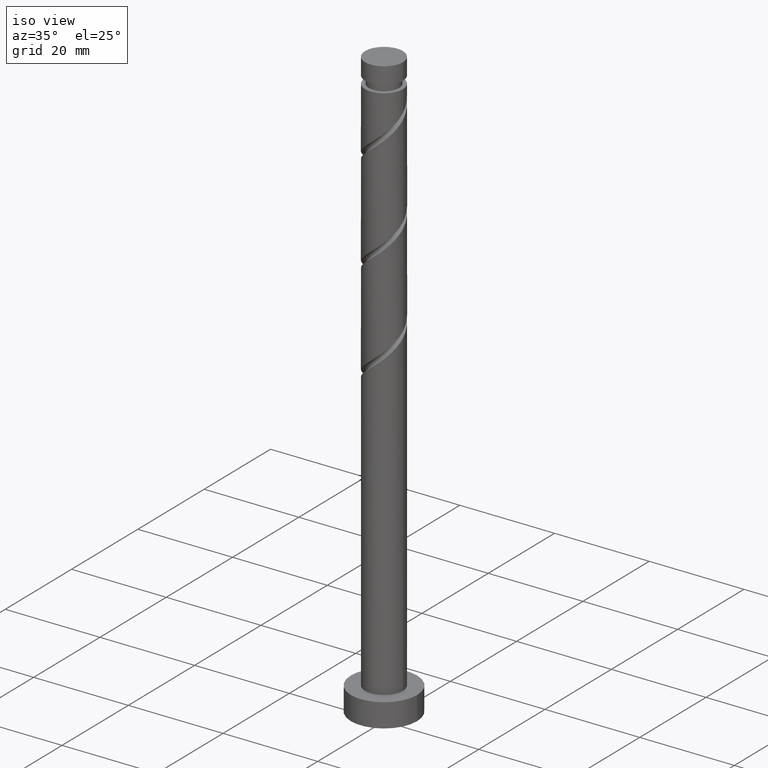
[diagram: clean part render]
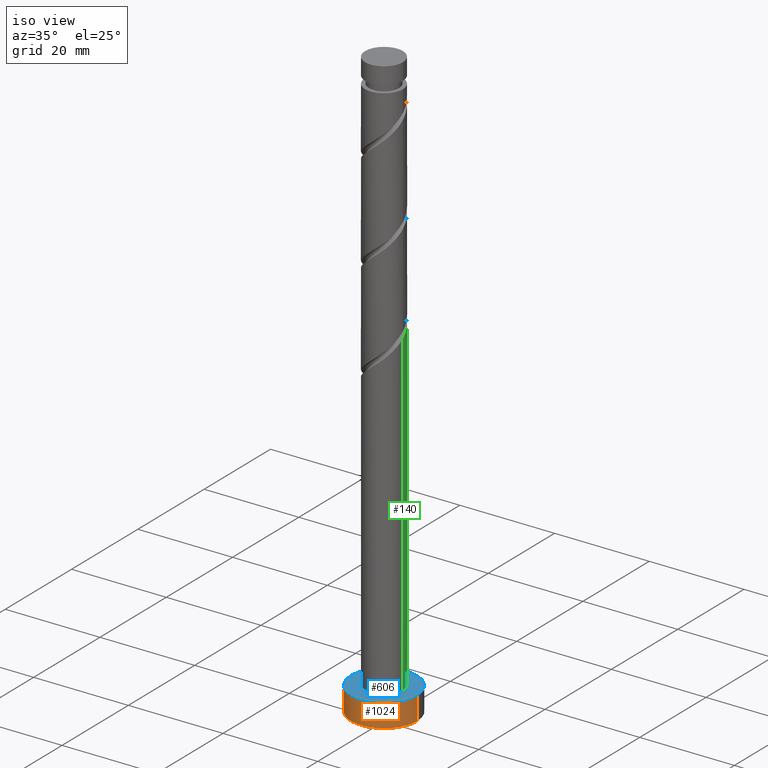
[diagram: same view with three faces highlighted in distinct colors, each labeled with its STEP entity id]
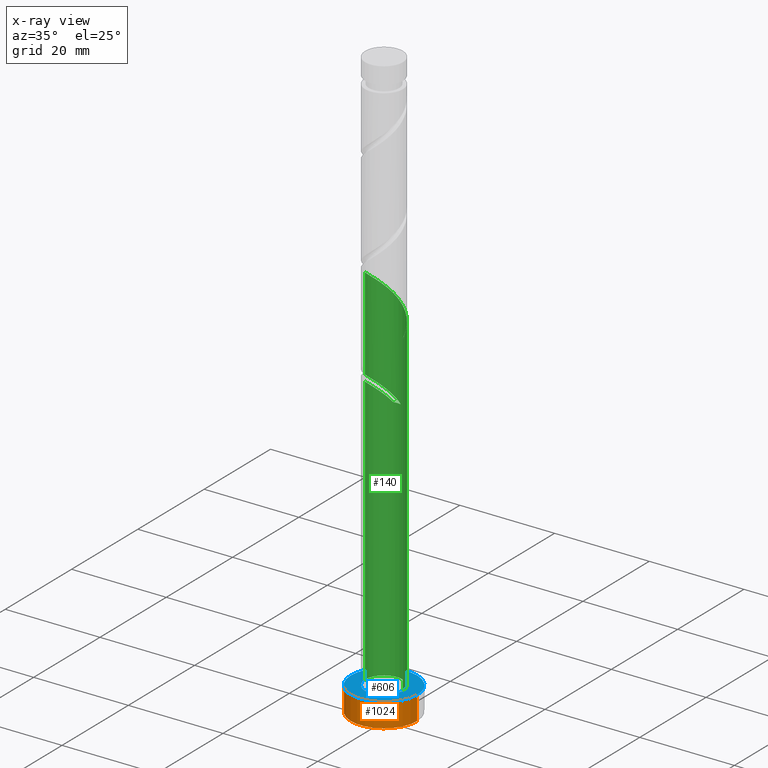
[diagram: x-ray of the same camera — body ghosted, the three highlighted faces saturated]
A machine part, iso view with three faces highlighted in distinct colors.
The next image is the same camera in x-ray (body ghosted, the three faces saturated) — at least one of them is partly hidden behind the body in this view.
Their STEP definitions:

[orange] entity #1024 — the highlighted cylindrical surface (partial cylindrical patch) has radius 7 mm, axis along (-0, -0, -1).
#14 = CARTESIAN_POINT ( 'NONE',  ( 7.000000000000000000, 8.572527594031473190E-16, 5.000000000000000000 ) ) ;
#47 = DIRECTION ( 'NONE',  ( -0.000000000000000000, -0.000000000000000000, -1.000000000000000000 ) ) ;
#89 = CIRCLE ( 'NONE', #499, 7.000000000000000000 ) ;
#109 = LINE ( 'NONE', #806, #897 ) ;
#125 = ORIENTED_EDGE ( 'NONE', *, *, #1494, .F. ) ;
#142 = DIRECTION ( 'NONE',  ( -0.000000000000000000, -0.000000000000000000, -1.000000000000000000 ) ) ;
#243 = AXIS2_PLACEMENT_3D ( 'NONE', #576, #829, #1057 ) ;
#421 = FACE_OUTER_BOUND ( 'NONE', #478, .T. ) ;
#431 = EDGE_CURVE ( 'NONE', #1241, #647, #109, .T. ) ;
#478 = EDGE_LOOP ( 'NONE', ( #797, #125, #653, #1173 ) ) ;
#499 = AXIS2_PLACEMENT_3D ( 'NONE', #700, #1052, #1542 ) ;
#571 = AXIS2_PLACEMENT_3D ( 'NONE', #1019, #47, #779 ) ;
#576 = CARTESIAN_POINT ( 'NONE',  ( 0.000000000000000000, 0.000000000000000000, 0.000000000000000000 ) ) ;
#647 = VERTEX_POINT ( 'NONE', #1509 ) ;
#653 = ORIENTED_EDGE ( 'NONE', *, *, #431, .T. ) ;
#700 = CARTESIAN_POINT ( 'NONE',  ( 0.000000000000000000, 0.000000000000000000, 5.000000000000000000 ) ) ;
#722 = VERTEX_POINT ( 'NONE', #1393 ) ;
#779 = DIRECTION ( 'NONE',  ( -1.000000000000000000, 0.000000000000000000, 0.000000000000000000 ) ) ;
#797 = ORIENTED_EDGE ( 'NONE', *, *, #1575, .F. ) ;
#806 = CARTESIAN_POINT ( 'NONE',  ( -7.000000000000000000, 0.000000000000000000, 5.000000000000000000 ) ) ;
#829 = DIRECTION ( 'NONE',  ( 0.000000000000000000, 0.000000000000000000, 1.000000000000000000 ) ) ;
#897 = VECTOR ( 'NONE', #1566, 1000.000000000000000 ) ;
#918 = CIRCLE ( 'NONE', #243, 7.000000000000000000 ) ;
#930 = VERTEX_POINT ( 'NONE', #14 ) ;
#1019 = CARTESIAN_POINT ( 'NONE',  ( 0.000000000000000000, 0.000000000000000000, 5.000000000000000000 ) ) ;
#1024 = ADVANCED_FACE ( 'NONE', ( #421 ), #1146, .T. ) ;
#1052 = DIRECTION ( 'NONE',  ( 0.000000000000000000, 0.000000000000000000, 1.000000000000000000 ) ) ;
#1057 = DIRECTION ( 'NONE',  ( 1.000000000000000000, 0.000000000000000000, 0.000000000000000000 ) ) ;
#1108 = LINE ( 'NONE', #1470, #1373 ) ;
#1146 = CYLINDRICAL_SURFACE ( 'NONE', #571, 7.000000000000000000 ) ;
#1152 = CARTESIAN_POINT ( 'NONE',  ( -7.000000000000000000, 0.000000000000000000, 5.000000000000000000 ) ) ;
#1173 = ORIENTED_EDGE ( 'NONE', *, *, #1298, .T. ) ;
#1241 = VERTEX_POINT ( 'NONE', #1152 ) ;
#1298 = EDGE_CURVE ( 'NONE', #647, #722, #918, .T. ) ;
#1373 = VECTOR ( 'NONE', #142, 1000.000000000000000 ) ;
#1393 = CARTESIAN_POINT ( 'NONE',  ( 7.000000000000000000, 8.572527594031473190E-16, 0.000000000000000000 ) ) ;
#1470 = CARTESIAN_POINT ( 'NONE',  ( 7.000000000000000000, 8.572527594031473190E-16, 5.000000000000000000 ) ) ;
#1494 = EDGE_CURVE ( 'NONE', #1241, #930, #89, .T. ) ;
#1509 = CARTESIAN_POINT ( 'NONE',  ( -7.000000000000000000, 0.000000000000000000, 0.000000000000000000 ) ) ;
#1542 = DIRECTION ( 'NONE',  ( 1.000000000000000000, 0.000000000000000000, 0.000000000000000000 ) ) ;
#1566 = DIRECTION ( 'NONE',  ( -0.000000000000000000, -0.000000000000000000, -1.000000000000000000 ) ) ;
#1575 = EDGE_CURVE ( 'NONE', #930, #722, #1108, .T. ) ;

[blue] entity #606 — the highlighted planar face has unit normal (0, 0, 1).
#14 = CARTESIAN_POINT ( 'NONE',  ( 7.000000000000000000, 8.572527594031473190E-16, 5.000000000000000000 ) ) ;
#39 = EDGE_CURVE ( 'NONE', #593, #1418, #1449, .T. ) ;
#50 = DIRECTION ( 'NONE',  ( 1.000000000000000000, 0.000000000000000000, -0.000000000000000000 ) ) ;
#89 = CIRCLE ( 'NONE', #499, 7.000000000000000000 ) ;
#94 = CARTESIAN_POINT ( 'NONE',  ( 4.000000000000000000, 4.898587196589412829E-16, 5.000000000000000000 ) ) ;
#97 = CARTESIAN_POINT ( 'NONE',  ( 0.000000000000000000, 0.000000000000000000, 5.000000000000000000 ) ) ;
#106 = ORIENTED_EDGE ( 'NONE', *, *, #1291, .T. ) ;
#170 = CARTESIAN_POINT ( 'NONE',  ( 0.000000000000000000, 0.000000000000000000, 5.000000000000000000 ) ) ;
#210 = DIRECTION ( 'NONE',  ( 1.000000000000000000, 0.000000000000000000, 0.000000000000000000 ) ) ;
#220 = CARTESIAN_POINT ( 'NONE',  ( 0.000000000000000000, 0.000000000000000000, 5.000000000000000000 ) ) ;
#268 = AXIS2_PLACEMENT_3D ( 'NONE', #694, #1034, #210 ) ;
#289 = CARTESIAN_POINT ( 'NONE',  ( -4.000000000000000000, 0.000000000000000000, 5.000000000000000000 ) ) ;
#292 = CIRCLE ( 'NONE', #1166, 4.000000000000000000 ) ;
#414 = EDGE_CURVE ( 'NONE', #1418, #593, #292, .T. ) ;
#470 = EDGE_LOOP ( 'NONE', ( #1504, #106 ) ) ;
#499 = AXIS2_PLACEMENT_3D ( 'NONE', #700, #1052, #1542 ) ;
#593 = VERTEX_POINT ( 'NONE', #289 ) ;
#602 = EDGE_LOOP ( 'NONE', ( #1400, #1531 ) ) ;
#606 = ADVANCED_FACE ( 'NONE', ( #1380, #910 ), #777, .T. ) ;
#684 = AXIS2_PLACEMENT_3D ( 'NONE', #170, #1135, #50 ) ;
#694 = CARTESIAN_POINT ( 'NONE',  ( 0.000000000000000000, 0.000000000000000000, 5.000000000000000000 ) ) ;
#700 = CARTESIAN_POINT ( 'NONE',  ( 0.000000000000000000, 0.000000000000000000, 5.000000000000000000 ) ) ;
#711 = DIRECTION ( 'NONE',  ( 0.000000000000000000, 0.000000000000000000, 1.000000000000000000 ) ) ;
#777 = PLANE ( 'NONE',  #684 ) ;
#910 = FACE_OUTER_BOUND ( 'NONE', #470, .T. ) ;
#922 = DIRECTION ( 'NONE',  ( 0.000000000000000000, 0.000000000000000000, 1.000000000000000000 ) ) ;
#930 = VERTEX_POINT ( 'NONE', #14 ) ;
#1034 = DIRECTION ( 'NONE',  ( 0.000000000000000000, 0.000000000000000000, 1.000000000000000000 ) ) ;
#1052 = DIRECTION ( 'NONE',  ( 0.000000000000000000, 0.000000000000000000, 1.000000000000000000 ) ) ;
#1054 = DIRECTION ( 'NONE',  ( 1.000000000000000000, 0.000000000000000000, 0.000000000000000000 ) ) ;
#1065 = AXIS2_PLACEMENT_3D ( 'NONE', #97, #922, #1054 ) ;
#1135 = DIRECTION ( 'NONE',  ( 0.000000000000000000, 0.000000000000000000, 1.000000000000000000 ) ) ;
#1152 = CARTESIAN_POINT ( 'NONE',  ( -7.000000000000000000, 0.000000000000000000, 5.000000000000000000 ) ) ;
#1166 = AXIS2_PLACEMENT_3D ( 'NONE', #220, #711, #1184 ) ;
#1184 = DIRECTION ( 'NONE',  ( 1.000000000000000000, 0.000000000000000000, 0.000000000000000000 ) ) ;
#1195 = CIRCLE ( 'NONE', #268, 7.000000000000000000 ) ;
#1241 = VERTEX_POINT ( 'NONE', #1152 ) ;
#1291 = EDGE_CURVE ( 'NONE', #930, #1241, #1195, .T. ) ;
#1380 = FACE_BOUND ( 'NONE', #602, .T. ) ;
#1400 = ORIENTED_EDGE ( 'NONE', *, *, #39, .F. ) ;
#1418 = VERTEX_POINT ( 'NONE', #94 ) ;
#1449 = CIRCLE ( 'NONE', #1065, 4.000000000000000000 ) ;
#1494 = EDGE_CURVE ( 'NONE', #1241, #930, #89, .T. ) ;
#1504 = ORIENTED_EDGE ( 'NONE', *, *, #1494, .T. ) ;
#1531 = ORIENTED_EDGE ( 'NONE', *, *, #414, .F. ) ;
#1542 = DIRECTION ( 'NONE',  ( 1.000000000000000000, 0.000000000000000000, 0.000000000000000000 ) ) ;

[green] entity #140 — the highlighted cylindrical surface (edge-blend (fillet) strip) has radius 4 mm, axis along (-0, -0, -1).
#5 = DIRECTION ( 'NONE',  ( -0.000000000000000000, -0.000000000000000000, -1.000000000000000000 ) ) ;
#6 = EDGE_CURVE ( 'NONE', #749, #1248, #241, .T. ) ;
#51 = VERTEX_POINT ( 'NONE', #223 ) ;
#67 = VERTEX_POINT ( 'NONE', #348 ) ;
#78 = CARTESIAN_POINT ( 'NONE',  ( -0.7959899496852951284, 3.920000000000007034, 57.34689096344955317 ) ) ;
#80 = EDGE_CURVE ( 'NONE', #51, #593, #476, .T. ) ;
#83 = DIRECTION ( 'NONE',  ( -0.000000000000000000, -0.000000000000000000, -1.000000000000000000 ) ) ;
#88 = CARTESIAN_POINT ( 'NONE',  ( -2.519899137249416388, 3.170406666830039466, 79.74272429678288177 ) ) ;
#94 = CARTESIAN_POINT ( 'NONE',  ( 4.000000000000000000, 4.898587196589412829E-16, 5.000000000000000000 ) ) ;
#127 = CARTESIAN_POINT ( 'NONE',  ( -1.083753322405397901, 3.902159508677975452, 58.90939096344956738 ) ) ;
#140 = ADVANCED_FACE ( 'NONE', ( #833 ), #739, .T. ) ;
#151 = CARTESIAN_POINT ( 'NONE',  ( 0.7959899496852964607, 3.920000000000000817, 57.34689096344955317 ) ) ;
#191 =( BOUNDED_CURVE ( )  B_SPLINE_CURVE ( 2, ( #1410, #1295, #219, #710, #1174, #389, #357, #275, #369, #127, #875, #846, #151 ),
 .UNSPECIFIED., .F., .T. ) 
 B_SPLINE_CURVE_WITH_KNOTS ( ( 3, 2, 2, 2, 2, 2, 3 ),
 ( 0.9295322023138552492, 0.9375000000000000000, 0.9499999999999999556, 0.9625000000000000222, 0.9749999999999999778, 0.9875000000000000444, 1.000000000000000000 ),
 .UNSPECIFIED. ) 
 CURVE ( )  GEOMETRIC_REPRESENTATION_ITEM ( )  RATIONAL_B_SPLINE_CURVE ( ( 0.9039174447099354026, 0.9019565955404647006, 0.9090909090909131685, 0.8978984914501292325, 0.9090909090909131685, 0.8978984914501292325, 0.9090909090909131685, 0.8978984914501292325, 0.9090909090909131685, 0.8978984914501292325, 0.9090909090909131685, 0.8978984914501292325, 0.9090909090909131685 ) ) 
 REPRESENTATION_ITEM ( '' )  );
#215 = CARTESIAN_POINT ( 'NONE',  ( 0.4543151893961445698, 3.974115965681423113, 77.13855763011622457 ) ) ;
#219 = CARTESIAN_POINT ( 'NONE',  ( -3.920000000000000817, 0.7959899496852955725, 62.55522429678289598 ) ) ;
#220 = CARTESIAN_POINT ( 'NONE',  ( 0.000000000000000000, 0.000000000000000000, 5.000000000000000000 ) ) ;
#223 = CARTESIAN_POINT ( 'NONE',  ( -4.000000000000005329, -2.998620556641140804E-15, 61.89042185531262419 ) ) ;
#239 = CARTESIAN_POINT ( 'NONE',  ( -4.000000000000000000, 0.000000000000000000, 125.0000000000000000 ) ) ;
#241 =( BOUNDED_CURVE ( )  B_SPLINE_CURVE ( 2, ( #1496, #1039, #1290, #1539, #426, #916, #817, #1529, #1163, #317, #215, #803, #451, #795, #1267, #88, #340, #1399, #707, #1387, #432, #1522, #928 ),
 .UNSPECIFIED., .F., .T. ) 
 B_SPLINE_CURVE_WITH_KNOTS ( ( 3, 2, 2, 2, 2, 2, 2, 2, 2, 2, 2, 3 ),
 ( 0.1795322023138552492, 0.1875000000000000000, 0.1999999999999999556, 0.2125000000000000222, 0.2249999999999999778, 0.2375000000000000444, 0.2500000000000000000, 0.2624999999999999556, 0.2750000000000000222, 0.2874999999999999778, 0.3000000000000000444, 0.3045322023138551937 ),
 .UNSPECIFIED. ) 
 CURVE ( )  GEOMETRIC_REPRESENTATION_ITEM ( )  RATIONAL_B_SPLINE_CURVE ( ( 0.9039174447099410648, 0.9019565955404704738, 0.9090909090909189416, 0.8978984914501350056, 0.9090909090909189416, 0.8978984914501350056, 0.9090909090909189416, 0.8978984914501350056, 0.9090909090909189416, 0.8978984914501350056, 0.9090909090909189416, 0.8978984914501350056, 0.9090909090909189416, 0.8978984914501350056, 0.9090909090909189416, 0.8978984914501350056, 0.9090909090909189416, 0.8978984914501350056, 0.9090909090909189416, 0.8978984914501350056, 0.9090909090909189416, 0.9050328050005833624, 0.9039174447099411758 ) ) 
 REPRESENTATION_ITEM ( '' )  );
#242 = VERTEX_POINT ( 'NONE', #78 ) ;
#275 = CARTESIAN_POINT ( 'NONE',  ( -2.236544262273465034, 3.376276034017704486, 59.95105763011622457 ) ) ;
#289 = CARTESIAN_POINT ( 'NONE',  ( -4.000000000000000000, 0.000000000000000000, 5.000000000000000000 ) ) ;
#292 = CIRCLE ( 'NONE', #1166, 4.000000000000000000 ) ;
#300 = ORIENTED_EDGE ( 'NONE', *, *, #414, .T. ) ;
#317 = CARTESIAN_POINT ( 'NONE',  ( 1.083753322405400565, 3.902159508677978561, 76.61772429678289598 ) ) ;
#326 = CARTESIAN_POINT ( 'NONE',  ( -1.416856955757479275, 3.793927577315144628, 57.86772429678288177 ) ) ;
#340 = CARTESIAN_POINT ( 'NONE',  ( -2.948087585633561769, 2.703475464551753582, 80.26355763011623878 ) ) ;
#348 = CARTESIAN_POINT ( 'NONE',  ( -4.000000000000001776, 3.988165340332742643E-15, 63.22002673825315355 ) ) ;
#357 = CARTESIAN_POINT ( 'NONE',  ( -2.703475464551750473, 2.948087585633557772, 60.47189096344955317 ) ) ;
#369 = CARTESIAN_POINT ( 'NONE',  ( -1.660148792339432022, 3.639217771347837971, 59.43022429678288887 ) ) ;
#389 = CARTESIAN_POINT ( 'NONE',  ( -3.170406666830035025, 2.519899137249414167, 60.99272429678289598 ) ) ;
#400 = EDGE_CURVE ( 'NONE', #242, #1293, #436, .T. ) ;
#409 = ORIENTED_EDGE ( 'NONE', *, *, #400, .T. ) ;
#414 = EDGE_CURVE ( 'NONE', #1418, #593, #292, .T. ) ;
#426 = CARTESIAN_POINT ( 'NONE',  ( 3.482167122072591603, 1.968378046503446832, 74.01355763011621036 ) ) ;
#432 = CARTESIAN_POINT ( 'NONE',  ( -3.974115965681423113, 0.4543151893961436816, 82.34689096344952475 ) ) ;
#436 = CIRCLE ( 'NONE', #1317, 4.000000000000000000 ) ;
#448 = CARTESIAN_POINT ( 'NONE',  ( 4.000000000000005329, 2.398896445312912959E-15, 72.30708852197928138 ) ) ;
#451 = CARTESIAN_POINT ( 'NONE',  ( -0.7959899496852949063, 3.920000000000007034, 78.18022429678288177 ) ) ;
#454 = CARTESIAN_POINT ( 'NONE',  ( 0.7959899496852964607, 3.920000000000000817, 57.34689096344955317 ) ) ;
#472 = CARTESIAN_POINT ( 'NONE',  ( -3.639217771347842856, 1.660148792339434465, 60.47189096344955317 ) ) ;
#476 = LINE ( 'NONE', #239, #1481 ) ;
#488 = ORIENTED_EDGE ( 'NONE', *, *, #1460, .F. ) ;
#500 =( BOUNDED_CURVE ( )  B_SPLINE_CURVE ( 2, ( #1559, #326, #724, #919, #594, #924, #472, #948, #811, #1430, #1284 ),
 .UNSPECIFIED., .F., .T. ) 
 B_SPLINE_CURVE_WITH_KNOTS ( ( 3, 2, 2, 2, 2, 3 ),
 ( 0.000000000000000000, 0.01249999999999995559, 0.02500000000000002220, 0.03749999999999997780, 0.05000000000000004441, 0.05453220231385522837 ),
 .UNSPECIFIED. ) 
 CURVE ( )  GEOMETRIC_REPRESENTATION_ITEM ( )  RATIONAL_B_SPLINE_CURVE ( ( 0.9090909090909189416, 0.8978984914501350056, 0.9090909090909189416, 0.8978984914501350056, 0.9090909090909189416, 0.8978984914501350056, 0.9090909090909189416, 0.8978984914501350056, 0.9090909090909189416, 0.9050328050005833624, 0.9039174447099413978 ) ) 
 REPRESENTATION_ITEM ( '' )  );
#568 = DIRECTION ( 'NONE',  ( 0.000000000000000000, 1.000000000000000000, -5.204170427930421283E-15 ) ) ;
#583 = EDGE_LOOP ( 'NONE', ( #1165, #890, #300, #946, #488, #409, #1549, #882 ) ) ;
#593 = VERTEX_POINT ( 'NONE', #289 ) ;
#594 = CARTESIAN_POINT ( 'NONE',  ( -2.948087585633561769, 2.703475464551753582, 59.43022429678288887 ) ) ;
#609 = DIRECTION ( 'NONE',  ( -1.000000000000000000, 0.000000000000000000, 0.000000000000000000 ) ) ;
#707 = CARTESIAN_POINT ( 'NONE',  ( -3.639217771347842856, 1.660148792339434465, 81.30522429678288177 ) ) ;
#710 = CARTESIAN_POINT ( 'NONE',  ( -3.793927577315138855, 1.416856955757477721, 62.03439096344956738 ) ) ;
#711 = DIRECTION ( 'NONE',  ( 0.000000000000000000, 0.000000000000000000, 1.000000000000000000 ) ) ;
#724 = CARTESIAN_POINT ( 'NONE',  ( -1.968378046503447498, 3.482167122072591603, 58.38855763011621747 ) ) ;
#731 = DIRECTION ( 'NONE',  ( -0.000000000000000000, -0.000000000000000000, -1.000000000000000000 ) ) ;
#739 = CYLINDRICAL_SURFACE ( 'NONE', #1557, 4.000000000000000000 ) ;
#749 = VERTEX_POINT ( 'NONE', #448 ) ;
#795 = CARTESIAN_POINT ( 'NONE',  ( -1.416856955757479275, 3.793927577315144628, 78.70105763011622457 ) ) ;
#798 = LINE ( 'NONE', #1263, #1321 ) ;
#803 = CARTESIAN_POINT ( 'NONE',  ( -0.1751229436131116479, 4.046072422684866332, 77.65939096344955317 ) ) ;
#811 = CARTESIAN_POINT ( 'NONE',  ( -3.974115965681423113, 0.4543151893961436816, 61.51355763011621036 ) ) ;
#817 = CARTESIAN_POINT ( 'NONE',  ( 2.703475464551754026, 2.948087585633560437, 75.05522429678285334 ) ) ;
#833 = FACE_OUTER_BOUND ( 'NONE', #583, .T. ) ;
#846 = CARTESIAN_POINT ( 'NONE',  ( 0.1751229436131132022, 4.046072422684862779, 57.86772429678288887 ) ) ;
#875 = CARTESIAN_POINT ( 'NONE',  ( -0.4543151893961423493, 3.974115965681417784, 58.38855763011622457 ) ) ;
#882 = ORIENTED_EDGE ( 'NONE', *, *, #977, .F. ) ;
#890 = ORIENTED_EDGE ( 'NONE', *, *, #1466, .T. ) ;
#898 = VECTOR ( 'NONE', #83, 1000.000000000000000 ) ;
#916 = CARTESIAN_POINT ( 'NONE',  ( 3.170406666830039910, 2.519899137249415944, 74.53439096344955317 ) ) ;
#919 = CARTESIAN_POINT ( 'NONE',  ( -2.519899137249416388, 3.170406666830039466, 58.90939096344955317 ) ) ;
#924 = CARTESIAN_POINT ( 'NONE',  ( -3.376276034017708483, 2.236544262273469030, 59.95105763011621036 ) ) ;
#925 = DIRECTION ( 'NONE',  ( 0.000000000000000000, -4.336808689942023258E-15, -1.000000000000000000 ) ) ;
#928 = CARTESIAN_POINT ( 'NONE',  ( -4.000000000000005329, -2.998620556641140804E-15, 82.72375518864592436 ) ) ;
#946 = ORIENTED_EDGE ( 'NONE', *, *, #80, .F. ) ;
#948 = CARTESIAN_POINT ( 'NONE',  ( -3.902159508677978561, 1.083753322405399899, 60.99272429678288177 ) ) ;
#977 = EDGE_CURVE ( 'NONE', #1248, #67, #798, .T. ) ;
#1039 = CARTESIAN_POINT ( 'NONE',  ( 4.000000000000005329, 0.4020151261036855050, 72.64139309738710892 ) ) ;
#1070 = CARTESIAN_POINT ( 'NONE',  ( 0.000000000000000000, 0.000000000000000000, 125.0000000000000000 ) ) ;
#1132 = DIRECTION ( 'NONE',  ( -0.000000000000000000, -0.000000000000000000, -1.000000000000000000 ) ) ;
#1163 = CARTESIAN_POINT ( 'NONE',  ( 1.660148792339435797, 3.639217771347842412, 76.09689096344955317 ) ) ;
#1165 = ORIENTED_EDGE ( 'NONE', *, *, #6, .F. ) ;
#1166 = AXIS2_PLACEMENT_3D ( 'NONE', #220, #711, #1184 ) ;
#1174 = CARTESIAN_POINT ( 'NONE',  ( -3.482167122072586718, 1.968378046503445944, 61.51355763011621036 ) ) ;
#1184 = DIRECTION ( 'NONE',  ( 1.000000000000000000, 0.000000000000000000, 0.000000000000000000 ) ) ;
#1248 = VERTEX_POINT ( 'NONE', #1490 ) ;
#1263 = CARTESIAN_POINT ( 'NONE',  ( -4.000000000000000000, 0.000000000000000000, 125.0000000000000000 ) ) ;
#1267 = CARTESIAN_POINT ( 'NONE',  ( -1.968378046503447498, 3.482167122072591603, 79.22189096344953896 ) ) ;
#1284 = CARTESIAN_POINT ( 'NONE',  ( -4.000000000000005329, -2.998620556641140804E-15, 61.89042185531262419 ) ) ;
#1290 = CARTESIAN_POINT ( 'NONE',  ( 3.920000000000007034, 0.7959899496852951284, 72.97189096344955317 ) ) ;
#1293 = VERTEX_POINT ( 'NONE', #454 ) ;
#1295 = CARTESIAN_POINT ( 'NONE',  ( -4.000000000000000888, 0.4020151261036867263, 62.88572216284532601 ) ) ;
#1296 = CARTESIAN_POINT ( 'NONE',  ( 0.000000000000000000, 0.000000000000000000, 57.34689096344956738 ) ) ;
#1317 = AXIS2_PLACEMENT_3D ( 'NONE', #1296, #925, #568 ) ;
#1321 = VECTOR ( 'NONE', #1132, 1000.000000000000000 ) ;
#1387 = CARTESIAN_POINT ( 'NONE',  ( -3.902159508677978561, 1.083753322405399899, 81.82605763011619615 ) ) ;
#1396 = LINE ( 'NONE', #1403, #898 ) ;
#1399 = CARTESIAN_POINT ( 'NONE',  ( -3.376276034017708483, 2.236544262273469030, 80.78439096344956738 ) ) ;
#1403 = CARTESIAN_POINT ( 'NONE',  ( 4.000000000000000000, 4.898587196589412829E-16, 125.0000000000000000 ) ) ;
#1410 = CARTESIAN_POINT ( 'NONE',  ( -4.000000000000001776, 3.988165340332741854E-15, 63.22002673825315355 ) ) ;
#1418 = VERTEX_POINT ( 'NONE', #94 ) ;
#1430 = CARTESIAN_POINT ( 'NONE',  ( -4.000000000000006217, 0.2278949497857321316, 61.70091076610534486 ) ) ;
#1460 = EDGE_CURVE ( 'NONE', #242, #51, #500, .T. ) ;
#1466 = EDGE_CURVE ( 'NONE', #749, #1418, #1396, .T. ) ;
#1481 = VECTOR ( 'NONE', #731, 1000.000000000000000 ) ;
#1490 = CARTESIAN_POINT ( 'NONE',  ( -4.000000000000005329, -2.998620556641140804E-15, 82.72375518864592436 ) ) ;
#1496 = CARTESIAN_POINT ( 'NONE',  ( 4.000000000000005329, 2.398896445312912959E-15, 72.30708852197928138 ) ) ;
#1498 = EDGE_CURVE ( 'NONE', #67, #1293, #191, .T. ) ;
#1522 = CARTESIAN_POINT ( 'NONE',  ( -4.000000000000004441, 0.2278949497857337969, 82.53424409943863793 ) ) ;
#1529 = CARTESIAN_POINT ( 'NONE',  ( 2.236544262273469919, 3.376276034017707595, 75.57605763011618194 ) ) ;
#1539 = CARTESIAN_POINT ( 'NONE',  ( 3.793927577315144628, 1.416856955757478831, 73.49272429678288177 ) ) ;
#1549 = ORIENTED_EDGE ( 'NONE', *, *, #1498, .F. ) ;
#1557 = AXIS2_PLACEMENT_3D ( 'NONE', #1070, #5, #609 ) ;
#1559 = CARTESIAN_POINT ( 'NONE',  ( -0.7959899496852951284, 3.920000000000007034, 57.34689096344955317 ) ) ;